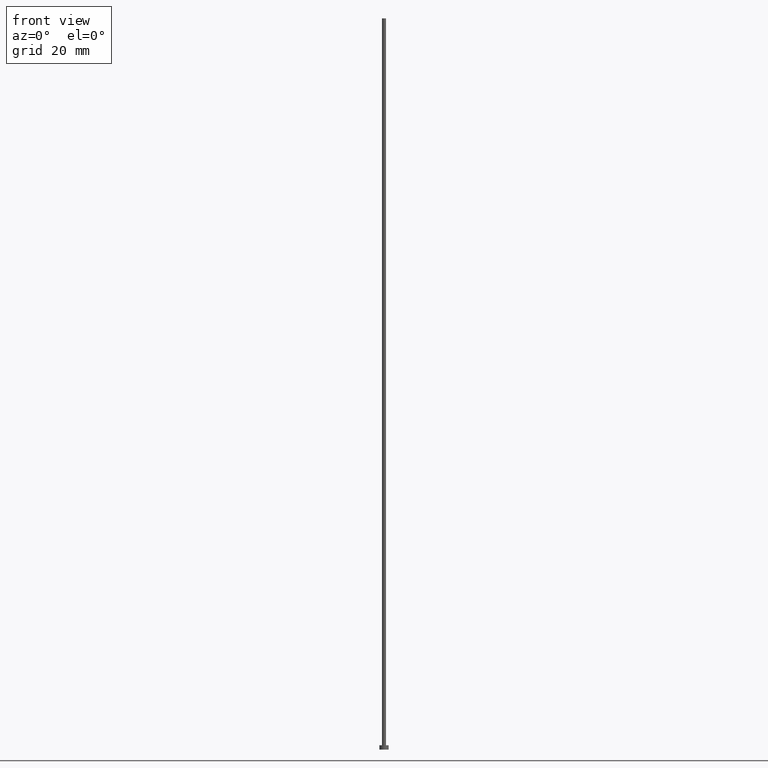
[diagram: clean part render]
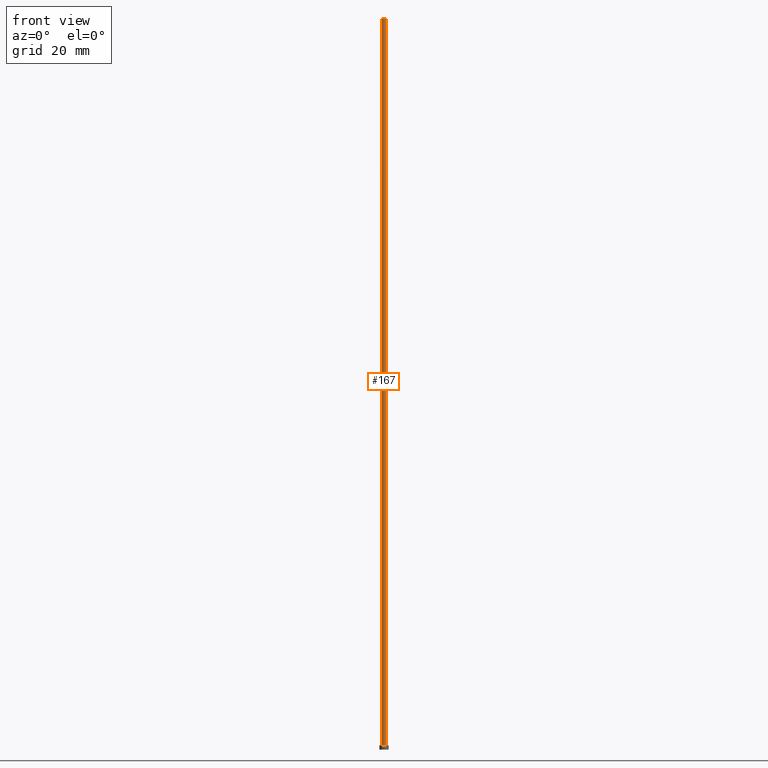
[diagram: same view with one face highlighted and labeled with its STEP entity id]
A machine part, front view. The second image highlights one B-rep face of the part: STEP entity #167.
In plain terms, the highlighted cylindrical surface (edge-blend (fillet) strip) has radius 0.55 mm, axis along (-0, -0, -1).
Its self-contained STEP definition (entity closure, byte-faithful):
#1 = CARTESIAN_POINT ( 'NONE',  ( -0.5500000000000000444, 0.000000000000000000, 200.0000000000000000 ) ) ;
#2 = ORIENTED_EDGE ( 'NONE', *, *, #185, .F. ) ;
#9 = AXIS2_PLACEMENT_3D ( 'NONE', #122, #15, #196 ) ;
#15 = DIRECTION ( 'NONE',  ( 0.000000000000000000, 0.000000000000000000, 1.000000000000000000 ) ) ;
#16 = CARTESIAN_POINT ( 'NONE',  ( -0.5500000000000000444, 0.000000000000000000, 200.0000000000000000 ) ) ;
#17 = VERTEX_POINT ( 'NONE', #23 ) ;
#18 = CARTESIAN_POINT ( 'NONE',  ( -0.5500000000000000444, 0.000000000000000000, 1.199999999999999956 ) ) ;
#23 = CARTESIAN_POINT ( 'NONE',  ( 0.5500000000000000444, 6.735557395310442516E-17, 200.0000000000000000 ) ) ;
#37 = FACE_OUTER_BOUND ( 'NONE', #63, .T. ) ;
#48 = DIRECTION ( 'NONE',  ( 0.000000000000000000, 0.000000000000000000, 1.000000000000000000 ) ) ;
#58 = LINE ( 'NONE', #16, #84 ) ;
#60 = EDGE_CURVE ( 'NONE', #241, #102, #233, .T. ) ;
#63 = EDGE_LOOP ( 'NONE', ( #181, #2, #223, #179 ) ) ;
#64 = CARTESIAN_POINT ( 'NONE',  ( 0.5500000000000000444, 6.735557395310442516E-17, 1.199999999999999956 ) ) ;
#82 = LINE ( 'NONE', #231, #252 ) ;
#84 = VECTOR ( 'NONE', #135, 1000.000000000000000 ) ;
#102 = VERTEX_POINT ( 'NONE', #64 ) ;
#114 = AXIS2_PLACEMENT_3D ( 'NONE', #238, #48, #206 ) ;
#118 = DIRECTION ( 'NONE',  ( -0.000000000000000000, -0.000000000000000000, -1.000000000000000000 ) ) ;
#120 = EDGE_CURVE ( 'NONE', #201, #241, #58, .T. ) ;
#122 = CARTESIAN_POINT ( 'NONE',  ( 0.000000000000000000, 0.000000000000000000, 200.0000000000000000 ) ) ;
#135 = DIRECTION ( 'NONE',  ( -0.000000000000000000, -0.000000000000000000, -1.000000000000000000 ) ) ;
#136 = EDGE_CURVE ( 'NONE', #17, #102, #82, .T. ) ;
#167 = ADVANCED_FACE ( 'NONE', ( #37 ), #249, .T. ) ;
#170 = CARTESIAN_POINT ( 'NONE',  ( 0.000000000000000000, 0.000000000000000000, 200.0000000000000000 ) ) ;
#179 = ORIENTED_EDGE ( 'NONE', *, *, #60, .T. ) ;
#181 = ORIENTED_EDGE ( 'NONE', *, *, #136, .F. ) ;
#185 = EDGE_CURVE ( 'NONE', #201, #17, #212, .T. ) ;
#192 = AXIS2_PLACEMENT_3D ( 'NONE', #170, #118, #216 ) ;
#196 = DIRECTION ( 'NONE',  ( 1.000000000000000000, 0.000000000000000000, 0.000000000000000000 ) ) ;
#201 = VERTEX_POINT ( 'NONE', #1 ) ;
#206 = DIRECTION ( 'NONE',  ( 1.000000000000000000, 0.000000000000000000, 0.000000000000000000 ) ) ;
#212 = CIRCLE ( 'NONE', #9, 0.5500000000000000444 ) ;
#216 = DIRECTION ( 'NONE',  ( -1.000000000000000000, 0.000000000000000000, 0.000000000000000000 ) ) ;
#223 = ORIENTED_EDGE ( 'NONE', *, *, #120, .T. ) ;
#231 = CARTESIAN_POINT ( 'NONE',  ( 0.5500000000000000444, 6.735557395310442516E-17, 200.0000000000000000 ) ) ;
#233 = CIRCLE ( 'NONE', #114, 0.5500000000000000444 ) ;
#238 = CARTESIAN_POINT ( 'NONE',  ( 0.000000000000000000, 0.000000000000000000, 1.199999999999999956 ) ) ;
#241 = VERTEX_POINT ( 'NONE', #18 ) ;
#249 = CYLINDRICAL_SURFACE ( 'NONE', #192, 0.5500000000000000444 ) ;
#252 = VECTOR ( 'NONE', #253, 1000.000000000000000 ) ;
#253 = DIRECTION ( 'NONE',  ( -0.000000000000000000, -0.000000000000000000, -1.000000000000000000 ) ) ;